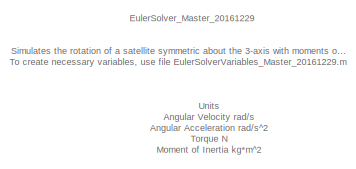
[diagram: root canvas - part 1/2, top left region]
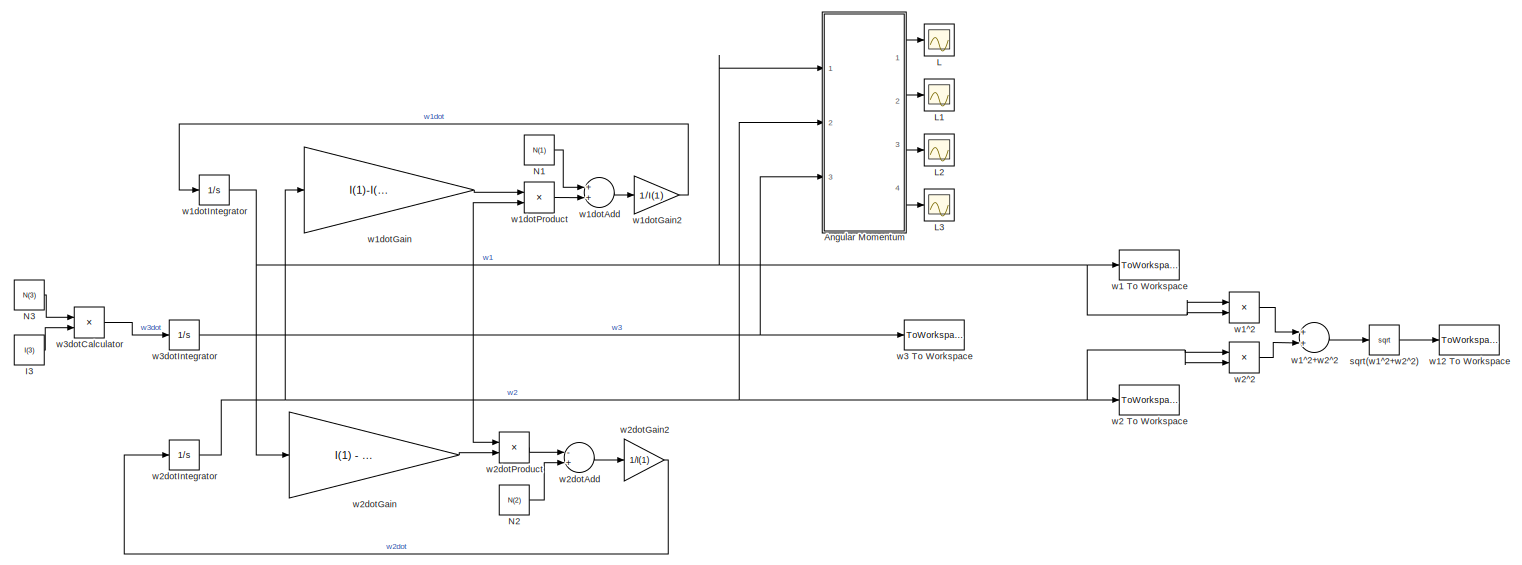
[diagram: root canvas - part 2/2, full width, middle band]
MODEL slx_a4b33f7f6aa2
KIND model
CONFIG AbsTol = 1e-5
CONFIG FixedStep = auto
CONFIG MaxStep = 0.001
CONFIG MinStep = auto
CONFIG RelTol = 1e-5
CONFIG SampleTimeConstraint = Unconstrained
CONFIG Solver = ode45
CONFIG SolverMode = Auto
CONFIG SolverName = ode45
CONFIG StartTime = 0.0
CONFIG StopTime = 20
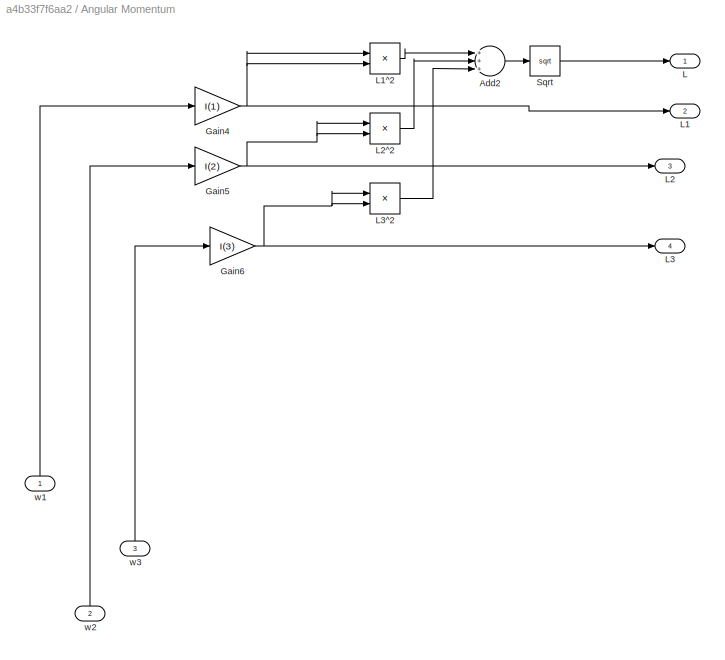
BLOCK [SubSystem] Angular Momentum
  Ports = [3, 4]
  RequestExecContextInheritance = off
  Variant = off
BLOCK [Sum] Angular Momentum/Add2
  InputSameDT = off
  Inputs = +++
  OutDataTypeStr = Inherit: Inherit via internal rule
  Ports = [3, 1]
  SaturateOnIntegerOverflow = off
BLOCK [Gain] Angular Momentum/Gain4
  Gain = I(1)
  OutDataTypeStr = Inherit: Inherit via internal rule
  ParamDataTypeStr = Inherit: Inherit via internal rule
  SaturateOnIntegerOverflow = off
BLOCK [Gain] Angular Momentum/Gain5
  Gain = I(2)
  OutDataTypeStr = Inherit: Inherit via internal rule
  ParamDataTypeStr = Inherit: Inherit via internal rule
  SaturateOnIntegerOverflow = off
BLOCK [Gain] Angular Momentum/Gain6
  Gain = I(3)
  OutDataTypeStr = Inherit: Inherit via internal rule
  ParamDataTypeStr = Inherit: Inherit via internal rule
  SaturateOnIntegerOverflow = off
BLOCK [Outport] Angular Momentum/L
  IconDisplay = Port number
BLOCK [Outport] Angular Momentum/L1
  IconDisplay = Port number
  Port = 2
BLOCK [Product] Angular Momentum/L1^2
  InputSameDT = off
  OutDataTypeStr = Inherit: Inherit via internal rule
  Ports = [2, 1]
  RndMeth = Floor
  SaturateOnIntegerOverflow = off
BLOCK [Outport] Angular Momentum/L2
  IconDisplay = Port number
  Port = 3
BLOCK [Product] Angular Momentum/L2^2
  InputSameDT = off
  OutDataTypeStr = Inherit: Inherit via internal rule
  Ports = [2, 1]
  RndMeth = Floor
  SaturateOnIntegerOverflow = off
BLOCK [Outport] Angular Momentum/L3
  IconDisplay = Port number
  Port = 4
BLOCK [Product] Angular Momentum/L3^2
  InputSameDT = off
  OutDataTypeStr = Inherit: Inherit via internal rule
  Ports = [2, 1]
  RndMeth = Floor
  SaturateOnIntegerOverflow = off
BLOCK [Sqrt] Angular Momentum/Sqrt
BLOCK [Inport] Angular Momentum/w1
  IconDisplay = Port number
BLOCK [Inport] Angular Momentum/w2
  IconDisplay = Port number
  Port = 2
BLOCK [Inport] Angular Momentum/w3
  IconDisplay = Port number
  Port = 3
BLOCK [Constant] I3
  Value = I(3)
BLOCK [Scope] L
  Ports = [1]
  ScopeSpecificationString = Simulink.scopes.TimeScopeBlockCfg('CurrentConfiguration', extmgr.ConfigurationSet(extmgr.Configuration('Core','General UI',true),extmgr.Configuration('Core','Source UI',true),extmgr.Configuration('Sources','WiredSimulink',true,'DataLoggingVariableName','ScopeData4'),extmgr.Configuration('Visuals','Time Domain',true,'SerializedDisplays',{struct('MinYLimReal','35.1283361404971','MaxYLimReal','35.128...<+1458ch>
BLOCK [Scope] L1
  Ports = [1]
  ScopeSpecificationString = C++SS(StrPVP('SaveName','ScopeData1'),StrPVP('LimitDataPoints','on'),StrPVP('DataFormat','Array'),StrPVP('Decimation','1'),StrPVP('BlockParamSampleInput','off'))
BLOCK [Scope] L2
  Ports = [1]
  ScopeSpecificationString = C++SS(StrPVP('SaveName','ScopeData1'),StrPVP('SaveName','ScopeData2'),StrPVP('LimitDataPoints','on'),StrPVP('DataFormat','Array'),StrPVP('Decimation','1'),StrPVP('BlockParamSampleInput','off'))
BLOCK [Scope] L3
  Ports = [1]
  ScopeSpecificationString = Simulink.scopes.TimeScopeBlockCfg('CurrentConfiguration', extmgr.ConfigurationSet(extmgr.Configuration('Core','General UI',true),extmgr.Configuration('Core','Source UI',true),extmgr.Configuration('Sources','WiredSimulink',true,'DataLoggingVariableName','ScopeData3'),extmgr.Configuration('Visuals','Time Domain',true,'SerializedDisplays',{struct('MinYLimReal','25.00000','MaxYLimReal','45.00000','YLa...<+1370ch>
BLOCK [Constant] N1
  Value = N(1)
BLOCK [Constant] N2
  Value = N(2)
BLOCK [Constant] N3
  Value = N(3)
BLOCK [Sqrt] sqrt(w1^2+w2^2)
BLOCK [ToWorkspace] w1 To Workspace
  FixptAsFi = on
  MaxDataPoints = inf
  Ports = [1]
  SampleTime = -1
  Save2DSignal = 3-D array (concatenate along third dimension)
  SaveFormat = Timeseries
  VariableName = w1
BLOCK [ToWorkspace] w12 To Workspace
  FixptAsFi = on
  MaxDataPoints = inf
  Ports = [1]
  SampleTime = -1
  Save2DSignal = 3-D array (concatenate along third dimension)
  SaveFormat = Timeseries
  VariableName = w12
BLOCK [Product] w1^2
  InputSameDT = off
  OutDataTypeStr = Inherit: Inherit via internal rule
  Ports = [2, 1]
  RndMeth = Floor
  SaturateOnIntegerOverflow = off
BLOCK [Sum] w1^2+w2^2
  InputSameDT = off
  OutDataTypeStr = Inherit: Inherit via internal rule
  Ports = [2, 1]
  SaturateOnIntegerOverflow = off
BLOCK [Sum] w1dotAdd
  InputSameDT = off
  OutDataTypeStr = Inherit: Inherit via internal rule
  Ports = [2, 1]
  SaturateOnIntegerOverflow = off
BLOCK [Gain] w1dotGain
  Gain = I(1)-I(3)
  OutDataTypeStr = Inherit: Inherit via internal rule
  ParamDataTypeStr = Inherit: Inherit via internal rule
  SaturateOnIntegerOverflow = off
BLOCK [Gain] w1dotGain2
  Gain = 1/I(1)
  OutDataTypeStr = Inherit: Inherit via internal rule
  ParamDataTypeStr = Inherit: Inherit via internal rule
  SaturateOnIntegerOverflow = off
BLOCK [Integrator] w1dotIntegrator
  InitialCondition = w(1)
  Ports = [1, 1]
BLOCK [Product] w1dotProduct
  InputSameDT = off
  OutDataTypeStr = Inherit: Inherit via internal rule
  Ports = [2, 1]
  RndMeth = Floor
  SaturateOnIntegerOverflow = off
BLOCK [ToWorkspace] w2 To Workspace
  FixptAsFi = on
  MaxDataPoints = inf
  Ports = [1]
  SampleTime = -1
  Save2DSignal = 3-D array (concatenate along third dimension)
  SaveFormat = Timeseries
  VariableName = w2
BLOCK [Product] w2^2
  InputSameDT = off
  OutDataTypeStr = Inherit: Inherit via internal rule
  Ports = [2, 1]
  RndMeth = Floor
  SaturateOnIntegerOverflow = off
BLOCK [Sum] w2dotAdd
  InputSameDT = off
  Inputs = -+
  OutDataTypeStr = Inherit: Inherit via internal rule
  Ports = [2, 1]
  SaturateOnIntegerOverflow = off
BLOCK [Gain] w2dotGain
  Gain = I(1) - I(3)
  OutDataTypeStr = Inherit: Inherit via internal rule
  ParamDataTypeStr = Inherit: Inherit via internal rule
  SaturateOnIntegerOverflow = off
BLOCK [Gain] w2dotGain2
  Gain = 1/I(1)
  OutDataTypeStr = Inherit: Inherit via internal rule
  ParamDataTypeStr = Inherit: Inherit via internal rule
  SaturateOnIntegerOverflow = off
BLOCK [Integrator] w2dotIntegrator
  InitialCondition = w(2)
  Ports = [1, 1]
BLOCK [Product] w2dotProduct
  InputSameDT = off
  OutDataTypeStr = Inherit: Inherit via internal rule
  Ports = [2, 1]
  RndMeth = Floor
  SaturateOnIntegerOverflow = off
BLOCK [ToWorkspace] w3 To Workspace
  FixptAsFi = on
  MaxDataPoints = inf
  Ports = [1]
  SampleTime = -1
  Save2DSignal = 3-D array (concatenate along third dimension)
  SaveFormat = Timeseries
  VariableName = w3
BLOCK [Product] w3dotCalculator
  InputSameDT = off
  Inputs = */
  OutDataTypeStr = Inherit: Inherit via internal rule
  Ports = [2, 1]
  RndMeth = Floor
  SaturateOnIntegerOverflow = off
BLOCK [Integrator] w3dotIntegrator
  InitialCondition = w(3)
  Ports = [1, 1]
ANNOTATION (root): Units Angular Velocity rad/s Angular Acceleration rad/s^2 Torque N Moment of Inertia kg*m^2
ANNOTATION (root): EulerSolver_Master_20161229
ANNOTATION (root): Simulates the rotation of a satellite symmetric about the 3-axis with moments of inertia I = [ I1 I1 I3], given an initial velocity of wnot = [wnot1 wnot2 wnot3], and experiencing a torque N = [N1 N2 N3] To create necessary variables, use file EulerSolverVariables_Master_20161229.m
LINE Angular Momentum/Add2:1 -> Angular Momentum/Sqrt:1
NET Angular Momentum/Gain4:1 -> Angular Momentum/L1:1, Angular Momentum/L1^2:1, Angular Momentum/L1^2:2
NET Angular Momentum/Gain5:1 -> Angular Momentum/L2:1, Angular Momentum/L2^2:1, Angular Momentum/L2^2:2
NET Angular Momentum/Gain6:1 -> Angular Momentum/L3:1, Angular Momentum/L3^2:1, Angular Momentum/L3^2:2
LINE Angular Momentum/L1^2:1 -> Angular Momentum/Add2:1
LINE Angular Momentum/L2^2:1 -> Angular Momentum/Add2:2
LINE Angular Momentum/L3^2:1 -> Angular Momentum/Add2:3
LINE Angular Momentum/Sqrt:1 -> Angular Momentum/L:1
LINE Angular Momentum/w1:1 -> Angular Momentum/Gain4:1
LINE Angular Momentum/w2:1 -> Angular Momentum/Gain5:1
LINE Angular Momentum/w3:1 -> Angular Momentum/Gain6:1
LINE Angular Momentum:1 -> L:1
LINE Angular Momentum:2 -> L1:1
LINE Angular Momentum:3 -> L2:1
LINE Angular Momentum:4 -> L3:1
LINE I3:1 -> w3dotCalculator:2
LINE N1:1 -> w1dotAdd:1
LINE N2:1 -> w2dotAdd:2
LINE N3:1 -> w3dotCalculator:1
LINE sqrt(w1^2+w2^2):1 -> w12 To Workspace:1
LINE w1^2+w2^2:1 -> sqrt(w1^2+w2^2):1
LINE w1^2:1 -> w1^2+w2^2:1
LINE w1dotAdd:1 -> w1dotGain2:1
LINE w1dotGain2:1 -> w1dotIntegrator:1
LINE w1dotGain:1 -> w1dotProduct:1
NET w1dotIntegrator:1 -> Angular Momentum:1, w1 To Workspace:1, w1^2:1, w1^2:2, w2dotGain:1
LINE w1dotProduct:1 -> w1dotAdd:2
LINE w2^2:1 -> w1^2+w2^2:2
LINE w2dotAdd:1 -> w2dotGain2:1
LINE w2dotGain2:1 -> w2dotIntegrator:1
LINE w2dotGain:1 -> w2dotProduct:2
NET w2dotIntegrator:1 -> Angular Momentum:2, w1dotGain:1, w2 To Workspace:1, w2^2:1, w2^2:2
LINE w2dotProduct:1 -> w2dotAdd:1
LINE w3dotCalculator:1 -> w3dotIntegrator:1
NET w3dotIntegrator:1 -> Angular Momentum:3, w1dotProduct:2, w2dotProduct:1, w3 To Workspace:1
note: NET lines group one-source signal fan-out (src -> all destinations, sorted); 1:1 wires keep LINE
